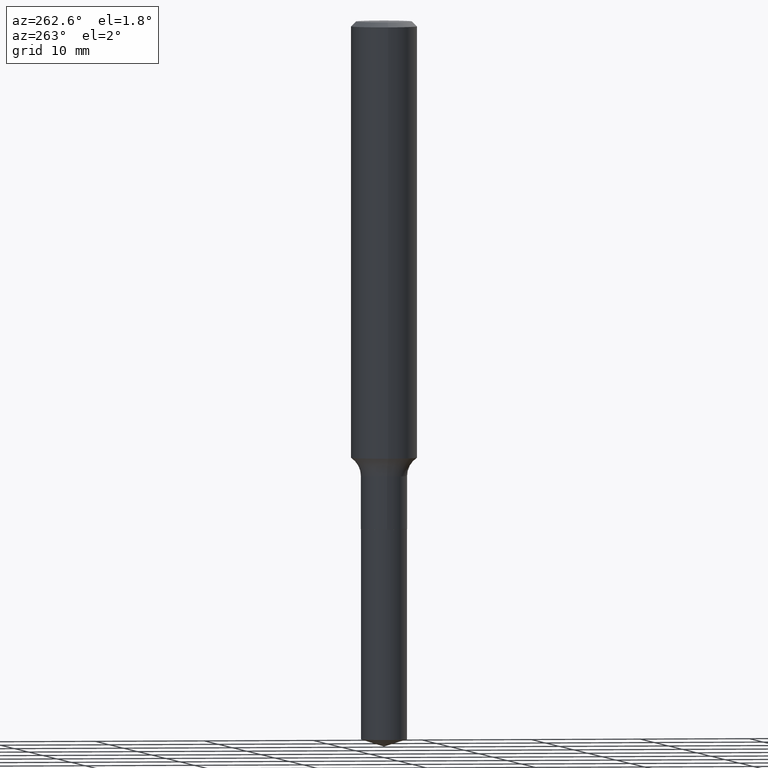
[diagram: clean part render]
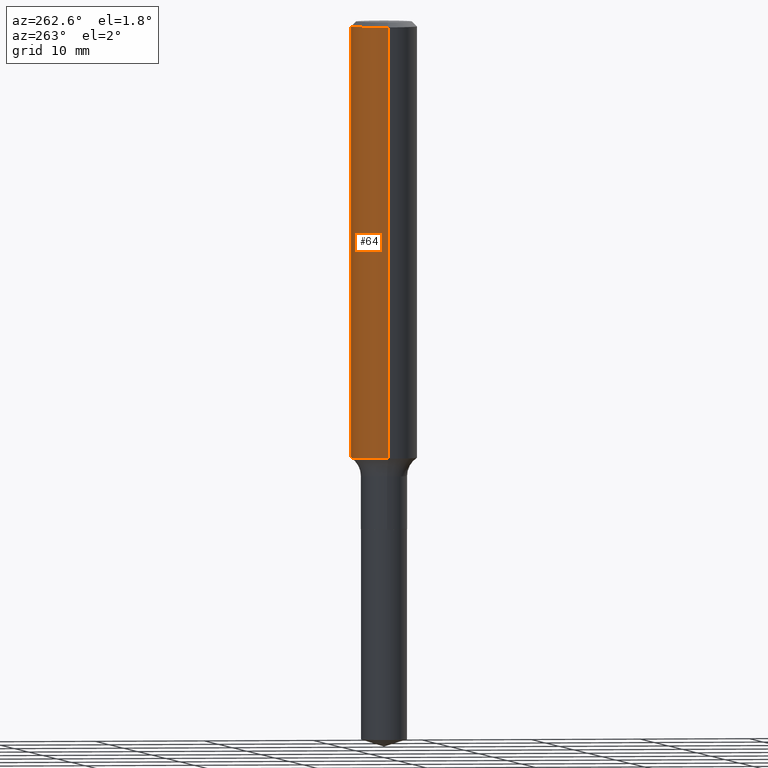
[diagram: same view with one face highlighted and labeled with its STEP entity id]
A machine part, auxiliary view. The second image highlights one B-rep face of the part: STEP entity #64.
In plain terms, the highlighted cylindrical surface (edge-blend (fillet) strip) has radius 2.9997 mm, axis along (-0, 0, 1).
Its self-contained STEP definition (entity closure, byte-faithful):
#28 = CYLINDRICAL_SURFACE ( 'NONE', #113, 0.1181000000000000799 ) ;
#38 = EDGE_CURVE ( 'NONE', #464, #349, #424, .T. ) ;
#58 = EDGE_LOOP ( 'NONE', ( #94, #491, #205, #402 ) ) ;
#64 = ADVANCED_FACE ( 'NONE', ( #179 ), #28, .T. ) ;
#67 = CARTESIAN_POINT ( 'NONE',  ( -0.1181000000000000799, 8.391509709326788873E-16, -5.809262341591047988E-30 ) ) ;
#73 = CARTESIAN_POINT ( 'NONE',  ( 0.1180999999999999966, -8.865394841523547570E-16, -0.01771500000000010913 ) ) ;
#75 = CARTESIAN_POINT ( 'NONE',  ( 0.1181000000000001354, -6.283132178002746580E-15, -1.563360578514957355 ) ) ;
#78 = EDGE_CURVE ( 'NONE', #90, #152, #262, .T. ) ;
#80 = VECTOR ( 'NONE', #410, 39.37007874015748143 ) ;
#83 = DIRECTION ( 'NONE',  ( -2.445468806185136877E-29, 3.491481338843145188E-15, 1.000000000000000000 ) ) ;
#90 = VERTEX_POINT ( 'NONE', #217 ) ;
#94 = ORIENTED_EDGE ( 'NONE', *, *, #461, .T. ) ;
#103 = DIRECTION ( 'NONE',  ( -2.445468806185136597E-29, 3.491481338843145583E-15, 1.000000000000000000 ) ) ;
#108 = CIRCLE ( 'NONE', #360, 0.1180999999999999966 ) ;
#112 = DIRECTION ( 'NONE',  ( -2.445468806185136597E-29, 3.491481338843145583E-15, 1.000000000000000000 ) ) ;
#113 = AXIS2_PLACEMENT_3D ( 'NONE', #182, #103, #331 ) ;
#118 = CARTESIAN_POINT ( 'NONE',  ( 3.823149527577877642E-29, -5.458444285767998317E-15, -1.563360578514957355 ) ) ;
#152 = VERTEX_POINT ( 'NONE', #253 ) ;
#168 = DIRECTION ( 'NONE',  ( -2.445468806185136597E-29, 3.491481338843145583E-15, 1.000000000000000000 ) ) ;
#179 = FACE_OUTER_BOUND ( 'NONE', #58, .T. ) ;
#182 = CARTESIAN_POINT ( 'NONE',  ( 0.000000000000000000, 0.000000000000000000, 0.000000000000000000 ) ) ;
#192 = DIRECTION ( 'NONE',  ( 1.000000000000000000, -6.982962677686263555E-15, 0.000000000000000000 ) ) ;
#205 = ORIENTED_EDGE ( 'NONE', *, *, #384, .F. ) ;
#212 = VECTOR ( 'NONE', #83, 39.37007874015748143 ) ;
#217 = CARTESIAN_POINT ( 'NONE',  ( -0.1181000000000001354, -4.619293314835319331E-15, -1.563360578514957355 ) ) ;
#253 = CARTESIAN_POINT ( 'NONE',  ( -0.1180999999999999966, -1.920996967910122878E-15, -0.01771500000000010913 ) ) ;
#262 = LINE ( 'NONE', #67, #80 ) ;
#278 = CARTESIAN_POINT ( 'NONE',  ( 0.1181000000000000799, -8.246878922347486570E-16, 5.758764772215004644E-30 ) ) ;
#310 = DIRECTION ( 'NONE',  ( 1.000000000000000000, -6.982962677686266711E-15, 0.000000000000000000 ) ) ;
#331 = DIRECTION ( 'NONE',  ( 1.000000000000000000, -6.982962677686266711E-15, 4.876176775795936353E-29 ) ) ;
#349 = VERTEX_POINT ( 'NONE', #73 ) ;
#360 = AXIS2_PLACEMENT_3D ( 'NONE', #389, #168, #310 ) ;
#384 = EDGE_CURVE ( 'NONE', #349, #152, #108, .T. ) ;
#389 = CARTESIAN_POINT ( 'NONE',  ( 4.332147990156996744E-31, -6.185159191760670395E-17, -0.01771500000000010913 ) ) ;
#402 = ORIENTED_EDGE ( 'NONE', *, *, #38, .F. ) ;
#410 = DIRECTION ( 'NONE',  ( -2.445468806185136877E-29, 3.491481338843145188E-15, 1.000000000000000000 ) ) ;
#424 = LINE ( 'NONE', #278, #212 ) ;
#460 = AXIS2_PLACEMENT_3D ( 'NONE', #118, #112, #192 ) ;
#461 = EDGE_CURVE ( 'NONE', #464, #90, #481, .T. ) ;
#464 = VERTEX_POINT ( 'NONE', #75 ) ;
#481 = CIRCLE ( 'NONE', #460, 0.1181000000000001632 ) ;
#491 = ORIENTED_EDGE ( 'NONE', *, *, #78, .T. ) ;